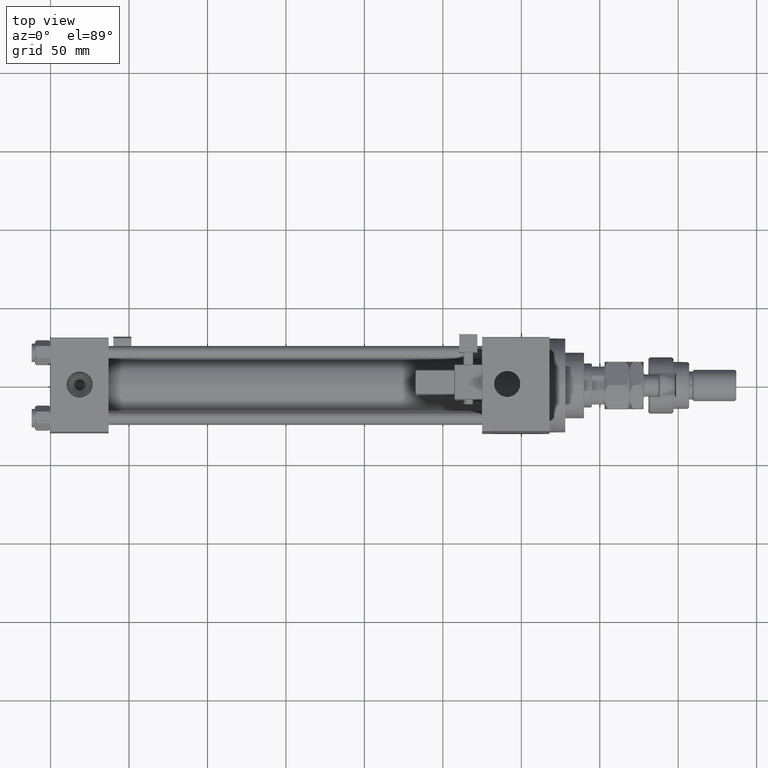
[diagram: clean part render]
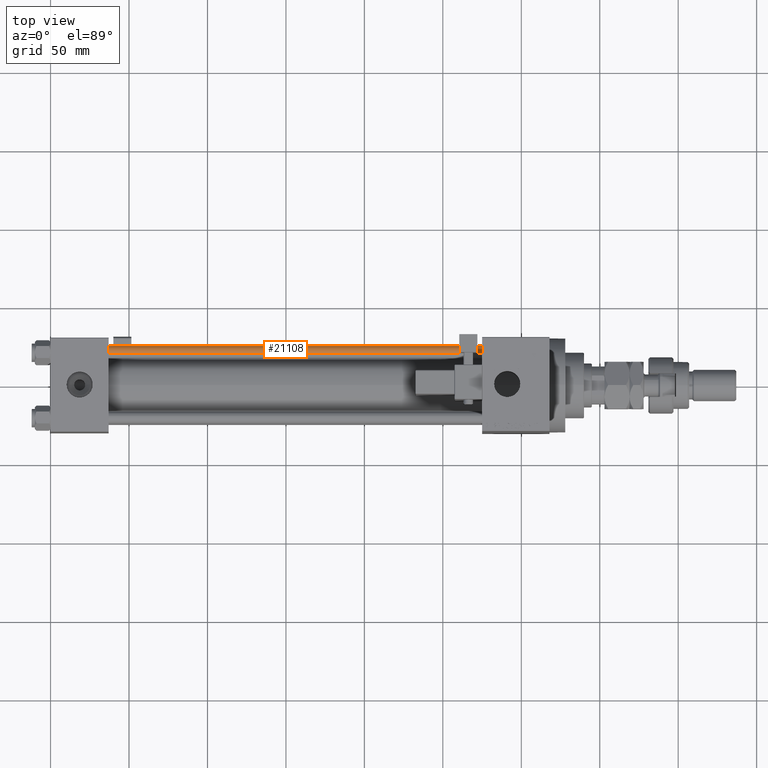
[diagram: same view with one face highlighted and labeled with its STEP entity id]
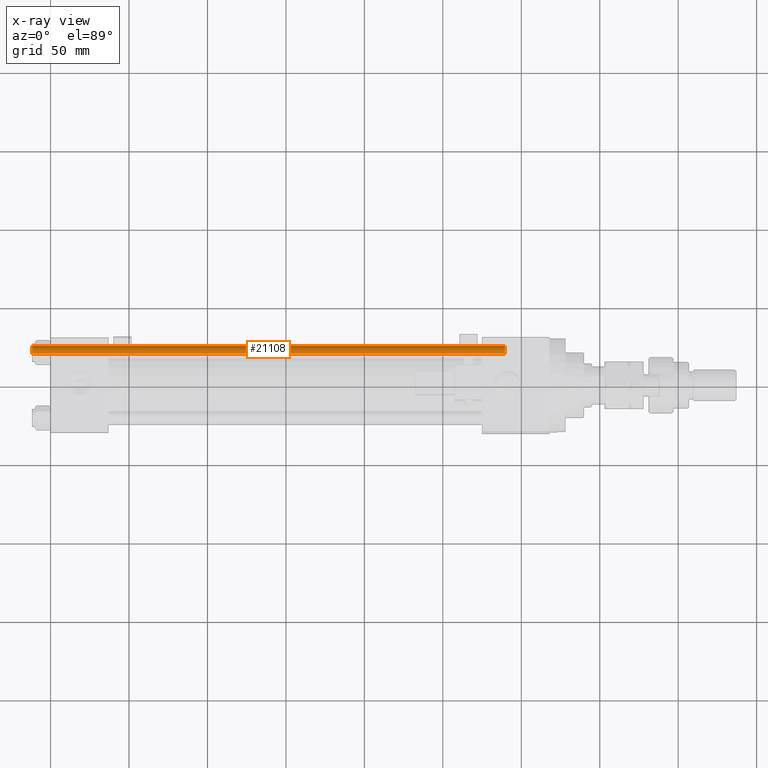
[diagram: x-ray of the same camera — body ghosted, the highlighted face saturated]
A machine part, top view. The second image highlights one B-rep face of the part: STEP entity #21108.
The next image is the same camera in x-ray: the body ghosted, the highlighted face saturated — about 0% of this face is hidden behind the body in this view.
In plain terms, the highlighted cylindrical surface (edge-blend (fillet) strip) has radius 4 mm, axis along (-1, -0, 0).
Its self-contained STEP definition (entity closure, byte-faithful):
#473 = VECTOR ( 'NONE', #43873, 1000.000000000000000 ) ;
#845 = EDGE_CURVE ( 'NONE', #14993, #40139, #36478, .T. ) ;
#3273 = CARTESIAN_POINT ( 'NONE',  ( -4.000000000000000000, 0.000000000000000000, 0.5000000000000559552 ) ) ;
#3393 = CARTESIAN_POINT ( 'NONE',  ( 0.000000000000000000, 0.000000000000000000, 302.0000000000000000 ) ) ;
#4063 = AXIS2_PLACEMENT_3D ( 'NONE', #31059, #26272, #16391 ) ;
#7391 = FACE_OUTER_BOUND ( 'NONE', #38830, .T. ) ;
#7750 = ORIENTED_EDGE ( 'NONE', *, *, #47013, .T. ) ;
#8879 = CARTESIAN_POINT ( 'NONE',  ( 0.000000000000000000, 0.000000000000000000, 0.5000000000000559552 ) ) ;
#10535 = EDGE_CURVE ( 'NONE', #43142, #40139, #25649, .T. ) ;
#11747 = CARTESIAN_POINT ( 'NONE',  ( -4.000000000000000000, 0.000000000000000000, 301.4999999999999432 ) ) ;
#14993 = VERTEX_POINT ( 'NONE', #11747 ) ;
#15427 = CARTESIAN_POINT ( 'NONE',  ( 4.000000000000000000, 4.898587196589412829E-16, 302.0000000000000000 ) ) ;
#16024 = CARTESIAN_POINT ( 'NONE',  ( -4.000000000000000000, 0.000000000000000000, 302.0000000000000000 ) ) ;
#16391 = DIRECTION ( 'NONE',  ( 1.000000000000000000, 0.000000000000000000, 0.000000000000000000 ) ) ;
#16486 = LINE ( 'NONE', #15427, #473 ) ;
#20867 = AXIS2_PLACEMENT_3D ( 'NONE', #3393, #35828, #52050 ) ;
#21108 = ADVANCED_FACE ( 'NONE', ( #7391 ), #23639, .T. ) ;
#22846 = CARTESIAN_POINT ( 'NONE',  ( 4.000000000000000000, 4.898587196589412829E-16, 301.4999999999999432 ) ) ;
#23639 = CYLINDRICAL_SURFACE ( 'NONE', #20867, 4.000000000000000000 ) ;
#25649 = CIRCLE ( 'NONE', #42643, 4.000000000000000000 ) ;
#26272 = DIRECTION ( 'NONE',  ( 0.000000000000000000, 0.000000000000000000, -1.000000000000000000 ) ) ;
#27572 = VERTEX_POINT ( 'NONE', #22846 ) ;
#28338 = CARTESIAN_POINT ( 'NONE',  ( 4.000000000000000000, 4.898587196589412829E-16, 0.5000000000000559552 ) ) ;
#30689 = ORIENTED_EDGE ( 'NONE', *, *, #38622, .T. ) ;
#31059 = CARTESIAN_POINT ( 'NONE',  ( 0.000000000000000000, 0.000000000000000000, 301.4999999999999432 ) ) ;
#31702 = ORIENTED_EDGE ( 'NONE', *, *, #10535, .T. ) ;
#32237 = DIRECTION ( 'NONE',  ( -0.000000000000000000, -0.000000000000000000, -1.000000000000000000 ) ) ;
#35828 = DIRECTION ( 'NONE',  ( -0.000000000000000000, -0.000000000000000000, -1.000000000000000000 ) ) ;
#36325 = CIRCLE ( 'NONE', #4063, 4.000000000000000000 ) ;
#36478 = LINE ( 'NONE', #16024, #37661 ) ;
#37661 = VECTOR ( 'NONE', #32237, 1000.000000000000000 ) ;
#38622 = EDGE_CURVE ( 'NONE', #27572, #43142, #16486, .T. ) ;
#38830 = EDGE_LOOP ( 'NONE', ( #7750, #30689, #31702, #45877 ) ) ;
#40139 = VERTEX_POINT ( 'NONE', #3273 ) ;
#42643 = AXIS2_PLACEMENT_3D ( 'NONE', #8879, #49293, #45308 ) ;
#43142 = VERTEX_POINT ( 'NONE', #28338 ) ;
#43873 = DIRECTION ( 'NONE',  ( -0.000000000000000000, -0.000000000000000000, -1.000000000000000000 ) ) ;
#45308 = DIRECTION ( 'NONE',  ( 1.000000000000000000, 0.000000000000000000, 0.000000000000000000 ) ) ;
#45877 = ORIENTED_EDGE ( 'NONE', *, *, #845, .F. ) ;
#47013 = EDGE_CURVE ( 'NONE', #14993, #27572, #36325, .T. ) ;
#49293 = DIRECTION ( 'NONE',  ( -0.000000000000000000, -0.000000000000000000, 1.000000000000000000 ) ) ;
#52050 = DIRECTION ( 'NONE',  ( -1.000000000000000000, 0.000000000000000000, 0.000000000000000000 ) ) ;